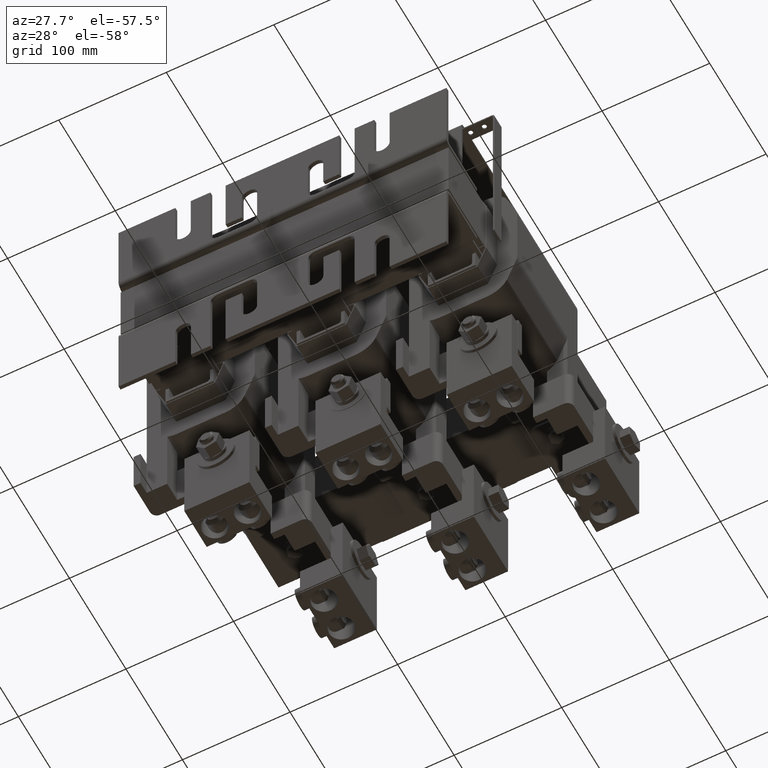
[diagram: clean part render]
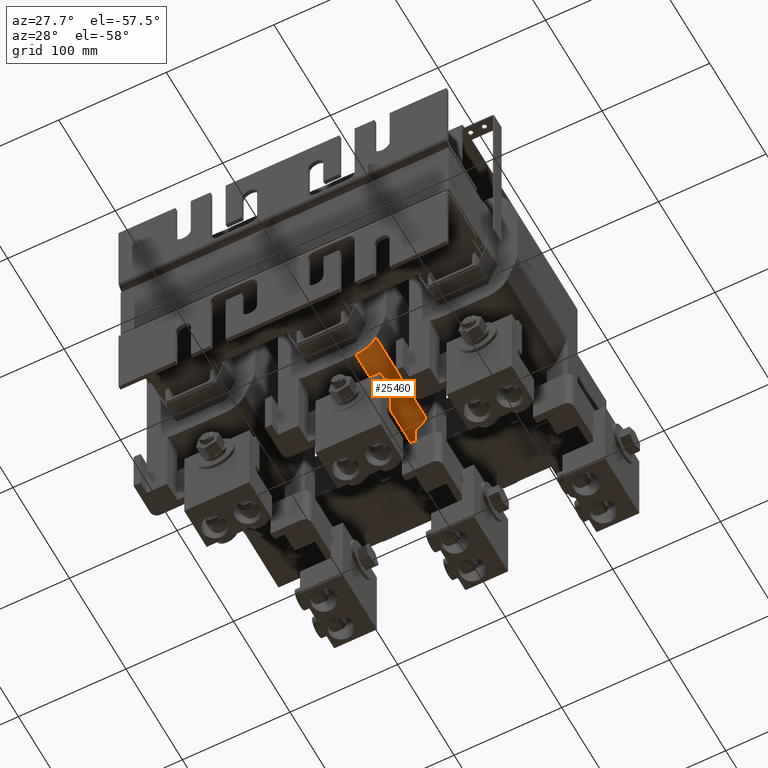
[diagram: same view with one face highlighted and labeled with its STEP entity id]
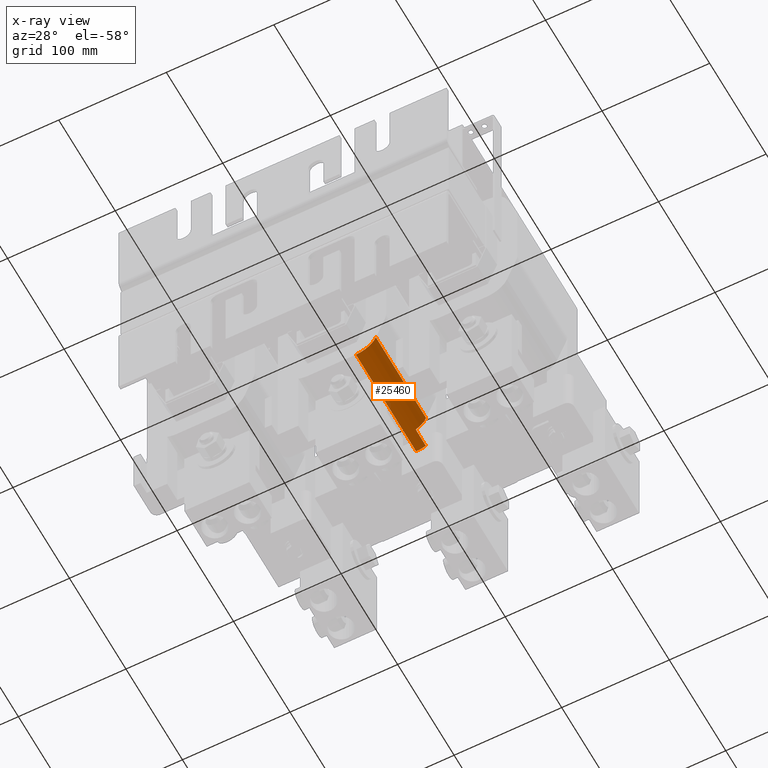
[diagram: x-ray of the same camera — body ghosted, the highlighted face saturated]
A machine part, auxiliary view. The second image highlights one B-rep face of the part: STEP entity #25460.
The next image is the same camera in x-ray: the body ghosted, the highlighted face saturated — about 3% of this face is hidden behind the body in this view.
In plain terms, the highlighted cylindrical surface (edge-blend (fillet) strip) has radius 19.8121 mm, axis along (-0, -1, -0).
Its self-contained STEP definition (entity closure, byte-faithful):
#2957=FACE_OUTER_BOUND('',#4412,.T.);
#4412=EDGE_LOOP('',(#18267,#18268,#18269,#18270,#18271,#18272));
#6146=LINE('',#37388,#8549);
#6229=LINE('',#37616,#8632);
#6230=LINE('',#37618,#8633);
#8549=VECTOR('',#30374,0.393700787401575);
#8632=VECTOR('',#30605,0.393700787401575);
#8633=VECTOR('',#30608,0.393700787401575);
#10816=CIRCLE('',#27764,0.780004996299923);
#10826=CIRCLE('',#27791,0.780004996299923);
#10844=CIRCLE('',#27825,0.780004996299923);
#11718=VERTEX_POINT('',#37374);
#11719=VERTEX_POINT('',#37376);
#11722=VERTEX_POINT('',#37387);
#11750=VERTEX_POINT('',#37473);
#11751=VERTEX_POINT('',#37475);
#11785=VERTEX_POINT('',#37578);
#14167=EDGE_CURVE('',#11719,#11718,#10816,.T.);
#14173=EDGE_CURVE('',#11722,#11719,#6146,.T.);
#14217=EDGE_CURVE('',#11751,#11750,#10826,.T.);
#14270=EDGE_CURVE('',#11785,#11722,#10844,.T.);
#14289=EDGE_CURVE('',#11718,#11751,#6229,.T.);
#14290=EDGE_CURVE('',#11785,#11750,#6230,.T.);
#18267=ORIENTED_EDGE('',*,*,#14167,.T.);
#18268=ORIENTED_EDGE('',*,*,#14289,.T.);
#18269=ORIENTED_EDGE('',*,*,#14217,.T.);
#18270=ORIENTED_EDGE('',*,*,#14290,.F.);
#18271=ORIENTED_EDGE('',*,*,#14270,.T.);
#18272=ORIENTED_EDGE('',*,*,#14173,.T.);
#24973=CYLINDRICAL_SURFACE('',#27841,0.780004996299923);
#25460=ADVANCED_FACE('',(#2957),#24973,.T.);
#27764=AXIS2_PLACEMENT_3D('',#37377,#30363,#30364);
#27791=AXIS2_PLACEMENT_3D('',#37476,#30457,#30458);
#27825=AXIS2_PLACEMENT_3D('',#37579,#30560,#30561);
#27841=AXIS2_PLACEMENT_3D('',#37617,#30606,#30607);
#30363=DIRECTION('center_axis',(0.,0.,1.));
#30364=DIRECTION('ref_axis',(0.000655088511441844,0.999999785429498,0.));
#30374=DIRECTION('',(0.,0.,1.));
#30457=DIRECTION('center_axis',(0.,0.,-1.));
#30458=DIRECTION('ref_axis',(0.000655088511441844,0.999999785429498,0.));
#30560=DIRECTION('center_axis',(0.,0.,1.));
#30561=DIRECTION('ref_axis',(0.000655088511441844,0.999999785429498,0.));
#30605=DIRECTION('',(0.,0.,1.));
#30606=DIRECTION('center_axis',(0.,0.,1.));
#30607=DIRECTION('ref_axis',(0.000655088511441844,0.999999785429498,0.));
#30608=DIRECTION('',(0.,0.,1.));
#37374=CARTESIAN_POINT('',(-0.409631905270786,3.65156928356605,-1.4));
#37376=CARTESIAN_POINT('',(-0.031981069216059,4.07528775594891,-1.4));
#37377=CARTESIAN_POINT('Origin',(0.321576572190468,3.38001458053086,-1.4));
#37387=CARTESIAN_POINT('',(-0.031981069216059,4.07528775594891,-2.1));
#37388=CARTESIAN_POINT('',(-0.031981069216059,4.07528775594891,0.));
#37473=CARTESIAN_POINT('',(0.322087544502411,4.16001940946472,2.1));
#37475=CARTESIAN_POINT('',(-0.409631905270786,3.65156928356605,2.1));
#37476=CARTESIAN_POINT('Origin',(0.321576572190468,3.38001458053086,2.1));
#37578=CARTESIAN_POINT('',(0.322087544502411,4.16001940946472,-2.1));
#37579=CARTESIAN_POINT('Origin',(0.321576572190468,3.38001458053086,-2.1));
#37616=CARTESIAN_POINT('',(-0.409631905270786,3.65156928356605,0.));
#37617=CARTESIAN_POINT('Origin',(0.321576572190468,3.38001458053086,0.));
#37618=CARTESIAN_POINT('',(0.322087544502411,4.16001940946472,0.));